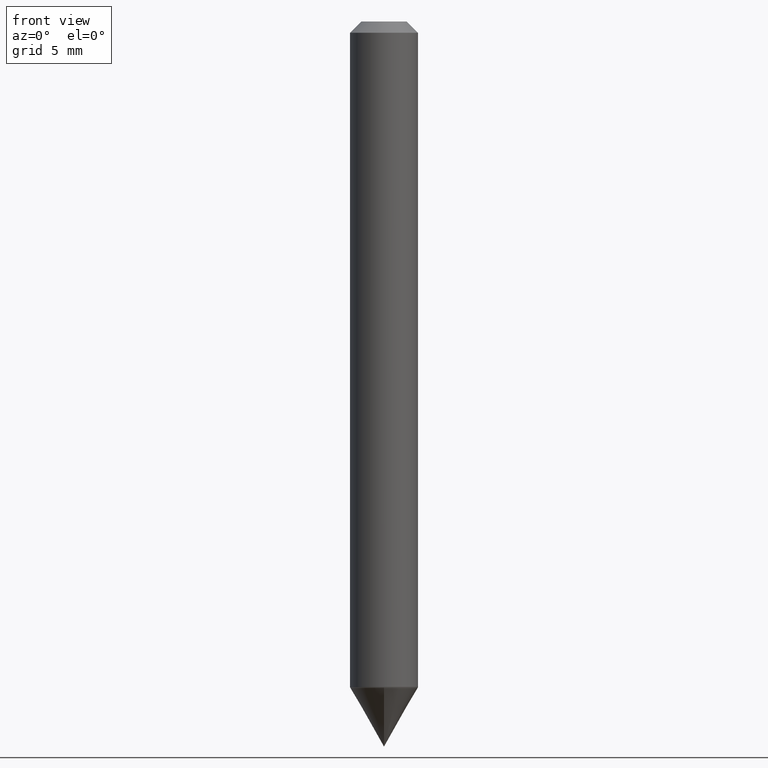
[diagram: clean part render]
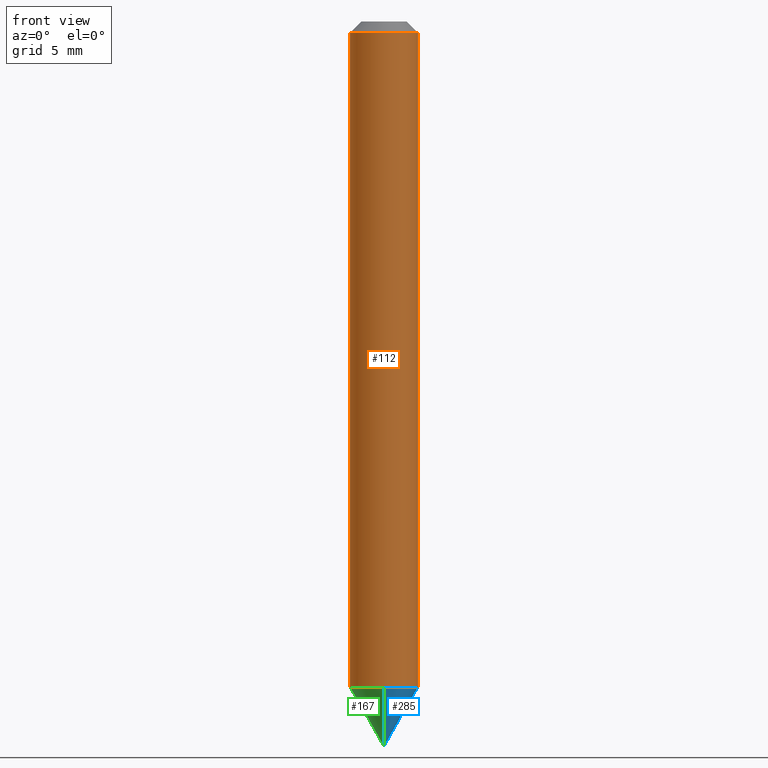
[diagram: same view with three faces highlighted in distinct colors, each labeled with its STEP entity id]
A machine part, front view with three faces highlighted in distinct colors.
Their STEP definitions:

[orange] entity #112 — the highlighted cylindrical surface (edge-blend (fillet) strip) has radius 2.3813 mm, axis along (-0, 0, 1).
#10 = AXIS2_PLACEMENT_3D ( 'NONE', #345, #70, #13 ) ;
#13 = DIRECTION ( 'NONE',  ( 1.000000000000000000, -6.982962677686266711E-15, 4.876176775795935793E-29 ) ) ;
#31 = EDGE_CURVE ( 'NONE', #136, #154, #373, .T. ) ;
#58 = ORIENTED_EDGE ( 'NONE', *, *, #31, .F. ) ;
#64 = CARTESIAN_POINT ( 'NONE',  ( -0.09375000000000001388, -2.594595935758567797E-15, -0.03120000000000020673 ) ) ;
#65 = EDGE_CURVE ( 'NONE', #390, #193, #191, .T. ) ;
#70 = DIRECTION ( 'NONE',  ( -2.445468806185136597E-29, 3.491481338843145583E-15, 1.000000000000000000 ) ) ;
#93 = CARTESIAN_POINT ( 'NONE',  ( 0.09375000000000001388, -7.635869688049943558E-16, -0.03120000000000020673 ) ) ;
#95 = EDGE_LOOP ( 'NONE', ( #58, #379, #332, #217 ) ) ;
#100 = AXIS2_PLACEMENT_3D ( 'NONE', #287, #204, #225 ) ;
#103 = CARTESIAN_POINT ( 'NONE',  ( -0.09375000000000012490, 6.661338147750948117E-16, -4.611501647113980301E-30 ) ) ;
#112 = ADVANCED_FACE ( 'NONE', ( #310 ), #222, .T. ) ;
#136 = VERTEX_POINT ( 'NONE', #216 ) ;
#149 = CARTESIAN_POINT ( 'NONE',  ( 0.09375000000000024980, -7.067178034328510701E-15, -1.836620236790417415 ) ) ;
#154 = VERTEX_POINT ( 'NONE', #64 ) ;
#161 = DIRECTION ( 'NONE',  ( -2.445468806185136877E-29, 3.491481338843145188E-15, 1.000000000000000000 ) ) ;
#169 = DIRECTION ( 'NONE',  ( -2.445468806185136877E-29, 3.491481338843145188E-15, 1.000000000000000000 ) ) ;
#191 = LINE ( 'NONE', #315, #284 ) ;
#193 = VERTEX_POINT ( 'NONE', #93 ) ;
#204 = DIRECTION ( 'NONE',  ( -2.445468806185136597E-29, 3.491481338843145583E-15, 1.000000000000000000 ) ) ;
#216 = CARTESIAN_POINT ( 'NONE',  ( -0.09375000000000024980, -5.746391468520326117E-15, -1.836620236790417415 ) ) ;
#217 = ORIENTED_EDGE ( 'NONE', *, *, #325, .F. ) ;
#222 = CYLINDRICAL_SURFACE ( 'NONE', #10, 0.09375000000000012490 ) ;
#225 = DIRECTION ( 'NONE',  ( 1.000000000000000000, -6.982962677686265922E-15, 0.000000000000000000 ) ) ;
#255 = CIRCLE ( 'NONE', #100, 0.09375000000000001388 ) ;
#259 = EDGE_CURVE ( 'NONE', #136, #390, #383, .T. ) ;
#270 = AXIS2_PLACEMENT_3D ( 'NONE', #378, #346, #318 ) ;
#284 = VECTOR ( 'NONE', #169, 39.37007874015748143 ) ;
#287 = CARTESIAN_POINT ( 'NONE',  ( 7.629862675297676574E-31, -1.089342177719068640E-16, -0.03120000000000020673 ) ) ;
#308 = VECTOR ( 'NONE', #161, 39.37007874015748143 ) ;
#310 = FACE_OUTER_BOUND ( 'NONE', #95, .T. ) ;
#315 = CARTESIAN_POINT ( 'NONE',  ( 0.09375000000000012490, -6.546527510330883916E-16, 4.571415727308696112E-30 ) ) ;
#318 = DIRECTION ( 'NONE',  ( 1.000000000000000000, -6.982962677686265133E-15, 0.000000000000000000 ) ) ;
#325 = EDGE_CURVE ( 'NONE', #154, #193, #255, .T. ) ;
#332 = ORIENTED_EDGE ( 'NONE', *, *, #65, .T. ) ;
#345 = CARTESIAN_POINT ( 'NONE',  ( 0.000000000000000000, 0.000000000000000000, 0.000000000000000000 ) ) ;
#346 = DIRECTION ( 'NONE',  ( -2.445468806185136597E-29, 3.491481338843145583E-15, 1.000000000000000000 ) ) ;
#373 = LINE ( 'NONE', #103, #308 ) ;
#378 = CARTESIAN_POINT ( 'NONE',  ( 4.491397497879325039E-29, -6.412525283295421619E-15, -1.836620236790417415 ) ) ;
#379 = ORIENTED_EDGE ( 'NONE', *, *, #259, .T. ) ;
#383 = CIRCLE ( 'NONE', #270, 0.09375000000000024980 ) ;
#390 = VERTEX_POINT ( 'NONE', #149 ) ;

[blue] entity #285 — the highlighted conical surface has half-angle 30 deg.
#1 = ORIENTED_EDGE ( 'NONE', *, *, #211, .F. ) ;
#29 = CONICAL_SURFACE ( 'NONE', #274, 0.09374999999999991673, 0.5235987755982879355 ) ;
#37 = VERTEX_POINT ( 'NONE', #319 ) ;
#38 = DIRECTION ( 'NONE',  ( 3.189554933143811858E-29, -2.425907654286061591E-15, -1.000000000000000000 ) ) ;
#39 = EDGE_LOOP ( 'NONE', ( #1, #188, #153 ) ) ;
#46 = LINE ( 'NONE', #291, #203 ) ;
#74 = FACE_OUTER_BOUND ( 'NONE', #39, .T. ) ;
#83 = CIRCLE ( 'NONE', #354, 0.09374999999999991673 ) ;
#88 = VERTEX_POINT ( 'NONE', #286 ) ;
#107 = CARTESIAN_POINT ( 'NONE',  ( 4.494215009748989040E-29, -6.415483977791985372E-15, -1.837620236790417083 ) ) ;
#146 = DIRECTION ( 'NONE',  ( -3.189554933143811858E-29, 2.425907654286061591E-15, 1.000000000000000000 ) ) ;
#153 = ORIENTED_EDGE ( 'NONE', *, *, #183, .T. ) ;
#177 = EDGE_CURVE ( 'NONE', #365, #88, #249, .T. ) ;
#183 = EDGE_CURVE ( 'NONE', #88, #37, #83, .T. ) ;
#188 = ORIENTED_EDGE ( 'NONE', *, *, #177, .T. ) ;
#203 = VECTOR ( 'NONE', #294, 39.37007874015748143 ) ;
#211 = EDGE_CURVE ( 'NONE', #365, #37, #46, .T. ) ;
#226 = DIRECTION ( 'NONE',  ( 6.982962677686266711E-15, 1.000000000000000000, -2.913971193241883527E-15 ) ) ;
#249 = LINE ( 'NONE', #261, #389 ) ;
#261 = CARTESIAN_POINT ( 'NONE',  ( 6.661338147751381005E-16, 0.09374999999999350520, -1.837620236790417527 ) ) ;
#268 = DIRECTION ( 'NONE',  ( -6.982962677686266711E-15, -1.000000000000000000, 2.913971193241883527E-15 ) ) ;
#274 = AXIS2_PLACEMENT_3D ( 'NONE', #380, #146, #268 ) ;
#285 = ADVANCED_FACE ( 'NONE', ( #74 ), #29, .T. ) ;
#286 = CARTESIAN_POINT ( 'NONE',  ( 6.661338147751383963E-16, 0.09374999999999353295, -1.837620236790417527 ) ) ;
#291 = CARTESIAN_POINT ( 'NONE',  ( -6.546527510330420460E-16, -0.09375000000000634215, -1.837620236790416861 ) ) ;
#294 = DIRECTION ( 'NONE',  ( -3.491481338843093912E-15, -0.4999999999999883427, 0.8660254037844452579 ) ) ;
#298 = CARTESIAN_POINT ( 'NONE',  ( 6.379109866287624838E-29, -4.851815308572123183E-15, -2.000000000000000000 ) ) ;
#319 = CARTESIAN_POINT ( 'NONE',  ( -6.546527510330417502E-16, -0.09375000000000631439, -1.837620236790416861 ) ) ;
#354 = AXIS2_PLACEMENT_3D ( 'NONE', #107, #38, #226 ) ;
#365 = VERTEX_POINT ( 'NONE', #298 ) ;
#374 = DIRECTION ( 'NONE',  ( 3.552713678800405477E-15, 0.4999999999999926170, 0.8660254037844429265 ) ) ;
#380 = CARTESIAN_POINT ( 'NONE',  ( 4.494215009748989040E-29, -6.415483977791985372E-15, -1.837620236790417083 ) ) ;
#389 = VECTOR ( 'NONE', #374, 39.37007874015748143 ) ;

[green] entity #167 — the highlighted conical surface has half-angle 30 deg.
#12 = FACE_OUTER_BOUND ( 'NONE', #372, .T. ) ;
#15 = CARTESIAN_POINT ( 'NONE',  ( 4.494215009748989040E-29, -6.415483977791985372E-15, -1.837620236790417083 ) ) ;
#30 = CIRCLE ( 'NONE', #388, 0.09374999999999991673 ) ;
#37 = VERTEX_POINT ( 'NONE', #319 ) ;
#46 = LINE ( 'NONE', #291, #203 ) ;
#88 = VERTEX_POINT ( 'NONE', #286 ) ;
#97 = DIRECTION ( 'NONE',  ( 6.982962677686266711E-15, 1.000000000000000000, -2.913971193241883527E-15 ) ) ;
#130 = CARTESIAN_POINT ( 'NONE',  ( 4.494215009748989040E-29, -6.415483977791985372E-15, -1.837620236790417083 ) ) ;
#132 = DIRECTION ( 'NONE',  ( 3.189554933143811858E-29, -2.425907654286061591E-15, -1.000000000000000000 ) ) ;
#138 = DIRECTION ( 'NONE',  ( -6.982962677686266711E-15, -1.000000000000000000, 2.913971193241883527E-15 ) ) ;
#142 = EDGE_CURVE ( 'NONE', #37, #88, #30, .T. ) ;
#163 = ORIENTED_EDGE ( 'NONE', *, *, #142, .T. ) ;
#167 = ADVANCED_FACE ( 'NONE', ( #12 ), #385, .T. ) ;
#177 = EDGE_CURVE ( 'NONE', #365, #88, #249, .T. ) ;
#203 = VECTOR ( 'NONE', #294, 39.37007874015748143 ) ;
#211 = EDGE_CURVE ( 'NONE', #365, #37, #46, .T. ) ;
#214 = ORIENTED_EDGE ( 'NONE', *, *, #177, .F. ) ;
#220 = AXIS2_PLACEMENT_3D ( 'NONE', #15, #343, #138 ) ;
#249 = LINE ( 'NONE', #261, #389 ) ;
#261 = CARTESIAN_POINT ( 'NONE',  ( 6.661338147751381005E-16, 0.09374999999999350520, -1.837620236790417527 ) ) ;
#286 = CARTESIAN_POINT ( 'NONE',  ( 6.661338147751383963E-16, 0.09374999999999353295, -1.837620236790417527 ) ) ;
#291 = CARTESIAN_POINT ( 'NONE',  ( -6.546527510330420460E-16, -0.09375000000000634215, -1.837620236790416861 ) ) ;
#294 = DIRECTION ( 'NONE',  ( -3.491481338843093912E-15, -0.4999999999999883427, 0.8660254037844452579 ) ) ;
#298 = CARTESIAN_POINT ( 'NONE',  ( 6.379109866287624838E-29, -4.851815308572123183E-15, -2.000000000000000000 ) ) ;
#301 = ORIENTED_EDGE ( 'NONE', *, *, #211, .T. ) ;
#319 = CARTESIAN_POINT ( 'NONE',  ( -6.546527510330417502E-16, -0.09375000000000631439, -1.837620236790416861 ) ) ;
#343 = DIRECTION ( 'NONE',  ( -3.189554933143811858E-29, 2.425907654286061591E-15, 1.000000000000000000 ) ) ;
#365 = VERTEX_POINT ( 'NONE', #298 ) ;
#372 = EDGE_LOOP ( 'NONE', ( #214, #301, #163 ) ) ;
#374 = DIRECTION ( 'NONE',  ( 3.552713678800405477E-15, 0.4999999999999926170, 0.8660254037844429265 ) ) ;
#385 = CONICAL_SURFACE ( 'NONE', #220, 0.09374999999999991673, 0.5235987755982879355 ) ;
#388 = AXIS2_PLACEMENT_3D ( 'NONE', #130, #132, #97 ) ;
#389 = VECTOR ( 'NONE', #374, 39.37007874015748143 ) ;